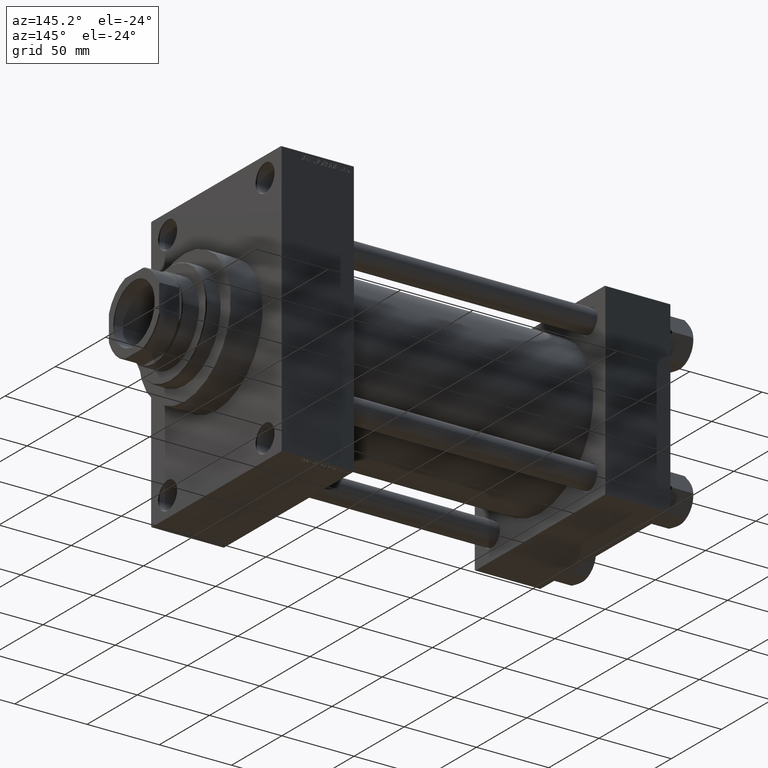
[diagram: clean part render]
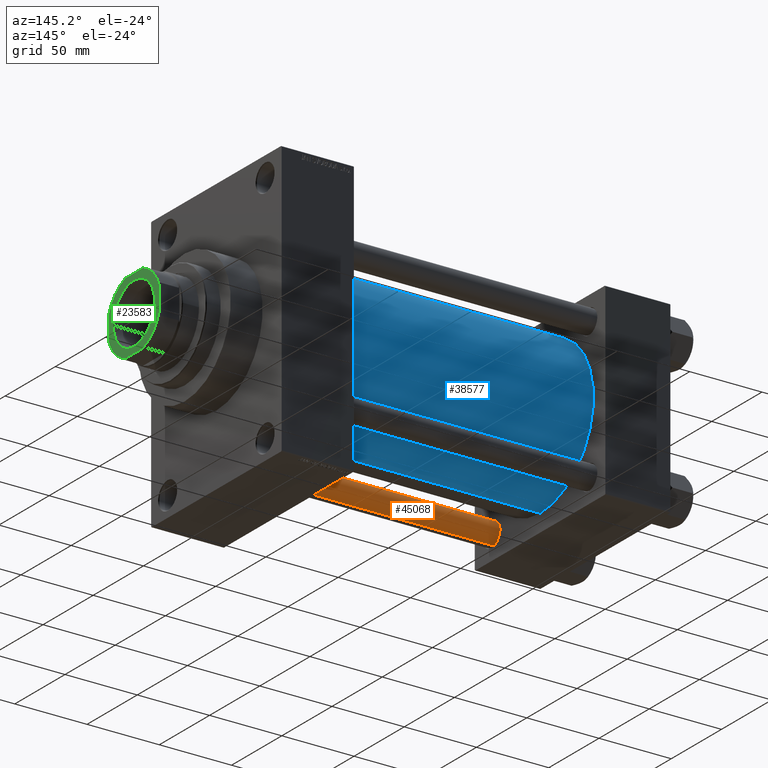
[diagram: same view with three faces highlighted in distinct colors, each labeled with its STEP entity id]
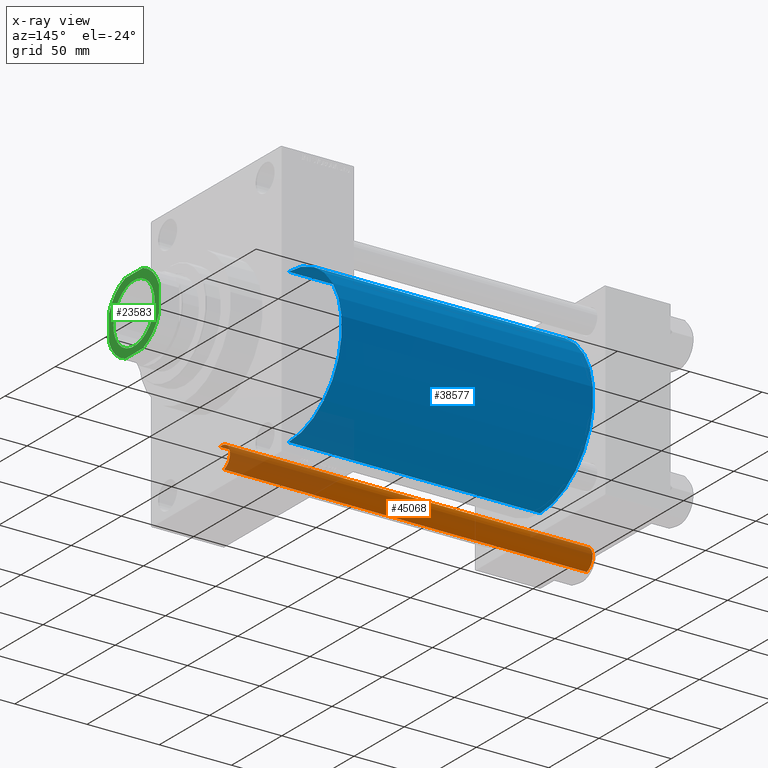
[diagram: x-ray of the same camera — body ghosted, the three highlighted faces saturated]
A machine part, auxiliary view with three faces highlighted in distinct colors.
The next image is the same camera in x-ray (body ghosted, the three faces saturated) — at least one of them is partly hidden behind the body in this view.
Their STEP definitions:

[orange] entity #45068 — the highlighted cylindrical surface (edge-blend (fillet) strip) has radius 8 mm, axis along (-1, 0, 0).
#1626 = EDGE_CURVE ( 'NONE', #46595, #19798, #15495, .T. ) ;
#1656 = LINE ( 'NONE', #40361, #41339 ) ;
#2331 = CARTESIAN_POINT ( 'NONE',  ( 0.000000000000000000, 0.000000000000000000, 252.0000000000000000 ) ) ;
#2379 = ORIENTED_EDGE ( 'NONE', *, *, #1626, .F. ) ;
#5702 = DIRECTION ( 'NONE',  ( -1.000000000000000000, 0.000000000000000000, 0.000000000000000000 ) ) ;
#7873 = CARTESIAN_POINT ( 'NONE',  ( 0.000000000000000000, 0.000000000000000000, 0.5000000000000559552 ) ) ;
#8004 = DIRECTION ( 'NONE',  ( -0.000000000000000000, -0.000000000000000000, -1.000000000000000000 ) ) ;
#9804 = DIRECTION ( 'NONE',  ( -0.000000000000000000, -0.000000000000000000, -1.000000000000000000 ) ) ;
#12521 = AXIS2_PLACEMENT_3D ( 'NONE', #2331, #9804, #5702 ) ;
#12691 = VECTOR ( 'NONE', #8004, 1000.000000000000000 ) ;
#12751 = CARTESIAN_POINT ( 'NONE',  ( -8.000000000000000000, 0.000000000000000000, 251.4999999999999432 ) ) ;
#15247 = AXIS2_PLACEMENT_3D ( 'NONE', #41142, #29766, #45012 ) ;
#15495 = LINE ( 'NONE', #33343, #12691 ) ;
#15672 = CARTESIAN_POINT ( 'NONE',  ( -8.000000000000000000, 0.000000000000000000, 0.5000000000000559552 ) ) ;
#16425 = VERTEX_POINT ( 'NONE', #15672 ) ;
#18396 = DIRECTION ( 'NONE',  ( -0.000000000000000000, -0.000000000000000000, -1.000000000000000000 ) ) ;
#19459 = FACE_OUTER_BOUND ( 'NONE', #32151, .T. ) ;
#19798 = VERTEX_POINT ( 'NONE', #39562 ) ;
#20000 = ORIENTED_EDGE ( 'NONE', *, *, #23080, .T. ) ;
#20424 = CYLINDRICAL_SURFACE ( 'NONE', #12521, 8.000000000000000000 ) ;
#22745 = EDGE_CURVE ( 'NONE', #32861, #16425, #1656, .T. ) ;
#23080 = EDGE_CURVE ( 'NONE', #16425, #19798, #46014, .T. ) ;
#24388 = AXIS2_PLACEMENT_3D ( 'NONE', #7873, #30782, #41196 ) ;
#25481 = EDGE_CURVE ( 'NONE', #46595, #32861, #32167, .T. ) ;
#29766 = DIRECTION ( 'NONE',  ( 0.000000000000000000, 0.000000000000000000, -1.000000000000000000 ) ) ;
#30782 = DIRECTION ( 'NONE',  ( -0.000000000000000000, -0.000000000000000000, 1.000000000000000000 ) ) ;
#31653 = CARTESIAN_POINT ( 'NONE',  ( 8.000000000000000000, 9.797174393178825657E-16, 251.4999999999999432 ) ) ;
#32151 = EDGE_LOOP ( 'NONE', ( #2379, #33303, #34400, #20000 ) ) ;
#32167 = CIRCLE ( 'NONE', #15247, 8.000000000000000000 ) ;
#32861 = VERTEX_POINT ( 'NONE', #12751 ) ;
#33303 = ORIENTED_EDGE ( 'NONE', *, *, #25481, .T. ) ;
#33343 = CARTESIAN_POINT ( 'NONE',  ( 8.000000000000000000, 9.797174393178825657E-16, 252.0000000000000000 ) ) ;
#34400 = ORIENTED_EDGE ( 'NONE', *, *, #22745, .T. ) ;
#39562 = CARTESIAN_POINT ( 'NONE',  ( 8.000000000000000000, 9.797174393178825657E-16, 0.5000000000000559552 ) ) ;
#40361 = CARTESIAN_POINT ( 'NONE',  ( -8.000000000000000000, 0.000000000000000000, 252.0000000000000000 ) ) ;
#41142 = CARTESIAN_POINT ( 'NONE',  ( 0.000000000000000000, 0.000000000000000000, 251.4999999999999432 ) ) ;
#41196 = DIRECTION ( 'NONE',  ( 1.000000000000000000, 0.000000000000000000, 0.000000000000000000 ) ) ;
#41339 = VECTOR ( 'NONE', #18396, 1000.000000000000000 ) ;
#45012 = DIRECTION ( 'NONE',  ( 1.000000000000000000, 0.000000000000000000, 0.000000000000000000 ) ) ;
#45068 = ADVANCED_FACE ( 'NONE', ( #19459 ), #20424, .T. ) ;
#46014 = CIRCLE ( 'NONE', #24388, 8.000000000000000000 ) ;
#46595 = VERTEX_POINT ( 'NONE', #31653 ) ;

[blue] entity #38577 — the highlighted cylindrical surface (partial cylindrical patch) has radius 53 mm, axis along (-1, -0, -0).
#2019 = DIRECTION ( 'NONE',  ( 0.000000000000000000, 0.000000000000000000, -1.000000000000000000 ) ) ;
#5675 = CYLINDRICAL_SURFACE ( 'NONE', #30903, 53.00000000000000711 ) ;
#7071 = EDGE_CURVE ( 'NONE', #47107, #10708, #46802, .T. ) ;
#7730 = EDGE_CURVE ( 'NONE', #10708, #31385, #17414, .T. ) ;
#9535 = CARTESIAN_POINT ( 'NONE',  ( 218.9999999999999716, -2.602085213965210642E-15, 0.000000000000000000 ) ) ;
#10708 = VERTEX_POINT ( 'NONE', #13864 ) ;
#10798 = ORIENTED_EDGE ( 'NONE', *, *, #15302, .F. ) ;
#11954 = VECTOR ( 'NONE', #27466, 1000.000000000000000 ) ;
#13719 = CARTESIAN_POINT ( 'NONE',  ( 218.9999999999999716, 3.888542821515762466E-15, -53.00000000000000711 ) ) ;
#13864 = CARTESIAN_POINT ( 'NONE',  ( 44.99999999999998579, 3.888542821515762466E-15, -53.00000000000000711 ) ) ;
#14239 = CARTESIAN_POINT ( 'NONE',  ( 218.9999999999999716, -2.602085213965210642E-15, 53.00000000000000711 ) ) ;
#14921 = ORIENTED_EDGE ( 'NONE', *, *, #7730, .T. ) ;
#15302 = EDGE_CURVE ( 'NONE', #21977, #31385, #39388, .T. ) ;
#16388 = CARTESIAN_POINT ( 'NONE',  ( 44.99999999999998579, -2.602085213965210642E-15, 0.000000000000000000 ) ) ;
#16707 = AXIS2_PLACEMENT_3D ( 'NONE', #38217, #35065, #2019 ) ;
#17414 = CIRCLE ( 'NONE', #42054, 53.00000000000000711 ) ;
#19908 = DIRECTION ( 'NONE',  ( -1.000000000000000000, -0.000000000000000000, -0.000000000000000000 ) ) ;
#21977 = VERTEX_POINT ( 'NONE', #14239 ) ;
#22576 = EDGE_CURVE ( 'NONE', #47107, #21977, #45209, .T. ) ;
#23684 = CARTESIAN_POINT ( 'NONE',  ( 218.9999999999999716, -2.602085213965210642E-15, 53.00000000000000711 ) ) ;
#23862 = DIRECTION ( 'NONE',  ( 0.000000000000000000, 0.000000000000000000, 1.000000000000000000 ) ) ;
#26476 = CARTESIAN_POINT ( 'NONE',  ( 218.9999999999999716, 3.888542821515762466E-15, -53.00000000000000711 ) ) ;
#27466 = DIRECTION ( 'NONE',  ( -1.000000000000000000, -0.000000000000000000, -0.000000000000000000 ) ) ;
#30762 = FACE_OUTER_BOUND ( 'NONE', #30996, .T. ) ;
#30903 = AXIS2_PLACEMENT_3D ( 'NONE', #9535, #19908, #45770 ) ;
#30996 = EDGE_LOOP ( 'NONE', ( #41488, #32035, #14921, #10798 ) ) ;
#31385 = VERTEX_POINT ( 'NONE', #34855 ) ;
#32035 = ORIENTED_EDGE ( 'NONE', *, *, #7071, .T. ) ;
#34855 = CARTESIAN_POINT ( 'NONE',  ( 44.99999999999998579, -2.602085213965210642E-15, 53.00000000000000711 ) ) ;
#35065 = DIRECTION ( 'NONE',  ( 1.000000000000000000, 0.000000000000000000, 0.000000000000000000 ) ) ;
#36889 = VECTOR ( 'NONE', #38419, 1000.000000000000000 ) ;
#38217 = CARTESIAN_POINT ( 'NONE',  ( 218.9999999999999716, -2.602085213965210642E-15, 0.000000000000000000 ) ) ;
#38419 = DIRECTION ( 'NONE',  ( -1.000000000000000000, -0.000000000000000000, -0.000000000000000000 ) ) ;
#38577 = ADVANCED_FACE ( 'NONE', ( #30762 ), #5675, .T. ) ;
#39388 = LINE ( 'NONE', #23684, #36889 ) ;
#41488 = ORIENTED_EDGE ( 'NONE', *, *, #22576, .F. ) ;
#42054 = AXIS2_PLACEMENT_3D ( 'NONE', #16388, #45131, #23862 ) ;
#45131 = DIRECTION ( 'NONE',  ( 1.000000000000000000, -0.000000000000000000, 0.000000000000000000 ) ) ;
#45209 = CIRCLE ( 'NONE', #16707, 53.00000000000000711 ) ;
#45770 = DIRECTION ( 'NONE',  ( 0.000000000000000000, 0.000000000000000000, 1.000000000000000000 ) ) ;
#46802 = LINE ( 'NONE', #13719, #11954 ) ;
#47107 = VERTEX_POINT ( 'NONE', #26476 ) ;

[green] entity #23583 — the highlighted planar face has unit normal (1, 0, 0).
#13 = DIRECTION ( 'NONE',  ( 1.000000000000000000, 0.000000000000000000, 0.000000000000000000 ) ) ;
#1991 = ORIENTED_EDGE ( 'NONE', *, *, #45553, .T. ) ;
#2347 = EDGE_LOOP ( 'NONE', ( #16140, #20128 ) ) ;
#2606 = DIRECTION ( 'NONE',  ( 1.387778780781445676E-16, -1.000000000000000000, 0.000000000000000000 ) ) ;
#4362 = DIRECTION ( 'NONE',  ( 1.000000000000000000, 0.000000000000000000, 0.000000000000000000 ) ) ;
#4381 = DIRECTION ( 'NONE',  ( 1.000000000000000000, 0.000000000000000000, 0.000000000000000000 ) ) ;
#5800 = ORIENTED_EDGE ( 'NONE', *, *, #42863, .T. ) ;
#5976 = VERTEX_POINT ( 'NONE', #24745 ) ;
#6214 = EDGE_CURVE ( 'NONE', #7307, #5976, #14273, .T. ) ;
#6619 = AXIS2_PLACEMENT_3D ( 'NONE', #28958, #14486, #13 ) ;
#7307 = VERTEX_POINT ( 'NONE', #13188 ) ;
#7571 = CARTESIAN_POINT ( 'NONE',  ( 0.000000000000000000, 0.000000000000000000, 281.0000000000000000 ) ) ;
#7918 = CARTESIAN_POINT ( 'NONE',  ( 0.000000000000000000, 0.000000000000000000, 281.0000000000000000 ) ) ;
#8233 = DIRECTION ( 'NONE',  ( 0.000000000000000000, -0.000000000000000000, -1.000000000000000000 ) ) ;
#8287 = CIRCLE ( 'NONE', #45330, 20.54999999999998650 ) ;
#8543 = CARTESIAN_POINT ( 'NONE',  ( 8.789197915623713442, 25.00000000000000000, 281.0000000000000000 ) ) ;
#8928 = EDGE_CURVE ( 'NONE', #36887, #19366, #42891, .T. ) ;
#9019 = DIRECTION ( 'NONE',  ( 1.000000000000000000, 0.000000000000000000, 0.000000000000000000 ) ) ;
#9796 = LINE ( 'NONE', #42161, #11378 ) ;
#10036 = CARTESIAN_POINT ( 'NONE',  ( -24.99999999999999289, -25.00000000000000000, 281.0000000000000000 ) ) ;
#10670 = CARTESIAN_POINT ( 'NONE',  ( 8.789197915623715218, -25.00000000000000000, 281.0000000000000000 ) ) ;
#10993 = ORIENTED_EDGE ( 'NONE', *, *, #12307, .T. ) ;
#11378 = VECTOR ( 'NONE', #35616, 1000.000000000000000 ) ;
#11801 = VERTEX_POINT ( 'NONE', #10670 ) ;
#11931 = EDGE_CURVE ( 'NONE', #41548, #7307, #28655, .T. ) ;
#12262 = FACE_OUTER_BOUND ( 'NONE', #46320, .T. ) ;
#12307 = EDGE_CURVE ( 'NONE', #11801, #13730, #36780, .T. ) ;
#12451 = CIRCLE ( 'NONE', #45624, 26.50000000000004263 ) ;
#12746 = FACE_BOUND ( 'NONE', #2347, .T. ) ;
#13188 = CARTESIAN_POINT ( 'NONE',  ( -24.99999999999999645, -8.789197915623496726, 281.0000000000000000 ) ) ;
#13319 = EDGE_CURVE ( 'NONE', #37542, #24120, #8287, .T. ) ;
#13730 = VERTEX_POINT ( 'NONE', #43493 ) ;
#13827 = CARTESIAN_POINT ( 'NONE',  ( -20.54999999999998650, 2.516649172247808793E-15, 281.0000000000000000 ) ) ;
#14273 = CIRCLE ( 'NONE', #31205, 26.50000000000000711 ) ;
#14486 = DIRECTION ( 'NONE',  ( -0.000000000000000000, 0.000000000000000000, 1.000000000000000000 ) ) ;
#14703 = ORIENTED_EDGE ( 'NONE', *, *, #28926, .T. ) ;
#14918 = EDGE_CURVE ( 'NONE', #5976, #11801, #28370, .T. ) ;
#15464 = DIRECTION ( 'NONE',  ( -0.000000000000000000, 0.000000000000000000, 1.000000000000000000 ) ) ;
#15978 = AXIS2_PLACEMENT_3D ( 'NONE', #7571, #25674, #47682 ) ;
#16140 = ORIENTED_EDGE ( 'NONE', *, *, #13319, .T. ) ;
#18501 = ORIENTED_EDGE ( 'NONE', *, *, #11931, .T. ) ;
#18662 = CARTESIAN_POINT ( 'NONE',  ( -24.99999999999999645, 8.789197915623610413, 281.0000000000000000 ) ) ;
#19366 = VERTEX_POINT ( 'NONE', #8543 ) ;
#19490 = VECTOR ( 'NONE', #39678, 1000.000000000000000 ) ;
#19970 = DIRECTION ( 'NONE',  ( 1.000000000000000000, 0.000000000000000000, 0.000000000000000000 ) ) ;
#20128 = ORIENTED_EDGE ( 'NONE', *, *, #34639, .T. ) ;
#21216 = ORIENTED_EDGE ( 'NONE', *, *, #8928, .T. ) ;
#21393 = CARTESIAN_POINT ( 'NONE',  ( -8.789197915623599755, 25.00000000000000000, 281.0000000000000000 ) ) ;
#22633 = DIRECTION ( 'NONE',  ( -0.000000000000000000, 0.000000000000000000, 1.000000000000000000 ) ) ;
#23583 = ADVANCED_FACE ( 'NONE', ( #12746, #12262 ), #42445, .T. ) ;
#24120 = VERTEX_POINT ( 'NONE', #13827 ) ;
#24745 = CARTESIAN_POINT ( 'NONE',  ( -8.789197915623482515, -25.00000000000000000, 281.0000000000000000 ) ) ;
#25172 = LINE ( 'NONE', #28789, #19490 ) ;
#25267 = CARTESIAN_POINT ( 'NONE',  ( -25.00000000000000000, 25.00000000000000000, 281.0000000000000000 ) ) ;
#25674 = DIRECTION ( 'NONE',  ( -0.000000000000000000, 0.000000000000000000, 1.000000000000000000 ) ) ;
#27207 = CARTESIAN_POINT ( 'NONE',  ( 0.000000000000000000, 0.000000000000000000, 281.0000000000000000 ) ) ;
#27208 = ORIENTED_EDGE ( 'NONE', *, *, #14918, .T. ) ;
#28370 = LINE ( 'NONE', #10036, #35345 ) ;
#28655 = LINE ( 'NONE', #25267, #46104 ) ;
#28789 = CARTESIAN_POINT ( 'NONE',  ( 25.00000000000000000, 25.00000000000000000, 281.0000000000000000 ) ) ;
#28926 = EDGE_CURVE ( 'NONE', #19366, #36298, #9796, .T. ) ;
#28958 = CARTESIAN_POINT ( 'NONE',  ( 0.000000000000000000, 0.000000000000000000, 281.0000000000000000 ) ) ;
#30043 = CARTESIAN_POINT ( 'NONE',  ( 20.54999999999998650, 0.000000000000000000, 281.0000000000000000 ) ) ;
#30404 = CARTESIAN_POINT ( 'NONE',  ( 0.000000000000000000, 0.000000000000000000, 281.0000000000000000 ) ) ;
#31205 = AXIS2_PLACEMENT_3D ( 'NONE', #7918, #22633, #37364 ) ;
#31212 = CARTESIAN_POINT ( 'NONE',  ( 0.000000000000000000, 0.000000000000000000, 281.0000000000000000 ) ) ;
#32131 = AXIS2_PLACEMENT_3D ( 'NONE', #27207, #45349, #19970 ) ;
#32849 = CARTESIAN_POINT ( 'NONE',  ( 25.00000000000000355, 8.789197915623713442, 281.0000000000000000 ) ) ;
#33106 = AXIS2_PLACEMENT_3D ( 'NONE', #36729, #8233, #4381 ) ;
#34639 = EDGE_CURVE ( 'NONE', #24120, #37542, #47044, .T. ) ;
#35345 = VECTOR ( 'NONE', #42649, 1000.000000000000000 ) ;
#35616 = DIRECTION ( 'NONE',  ( -1.000000000000000000, -0.000000000000000000, -0.000000000000000000 ) ) ;
#36298 = VERTEX_POINT ( 'NONE', #21393 ) ;
#36729 = CARTESIAN_POINT ( 'NONE',  ( 0.000000000000000000, 0.000000000000000000, 281.0000000000000000 ) ) ;
#36780 = CIRCLE ( 'NONE', #15978, 26.50000000000008171 ) ;
#36887 = VERTEX_POINT ( 'NONE', #32849 ) ;
#37364 = DIRECTION ( 'NONE',  ( 1.000000000000000000, 0.000000000000000000, 0.000000000000000000 ) ) ;
#37542 = VERTEX_POINT ( 'NONE', #30043 ) ;
#39355 = ORIENTED_EDGE ( 'NONE', *, *, #6214, .T. ) ;
#39678 = DIRECTION ( 'NONE',  ( -1.387778780781445676E-16, 1.000000000000000000, -0.000000000000000000 ) ) ;
#41548 = VERTEX_POINT ( 'NONE', #18662 ) ;
#42161 = CARTESIAN_POINT ( 'NONE',  ( -25.00000000000000000, 25.00000000000000000, 281.0000000000000000 ) ) ;
#42346 = DIRECTION ( 'NONE',  ( 0.000000000000000000, -0.000000000000000000, -1.000000000000000000 ) ) ;
#42445 = PLANE ( 'NONE',  #32131 ) ;
#42649 = DIRECTION ( 'NONE',  ( 1.000000000000000000, 0.000000000000000000, 0.000000000000000000 ) ) ;
#42863 = EDGE_CURVE ( 'NONE', #36298, #41548, #12451, .T. ) ;
#42891 = CIRCLE ( 'NONE', #6619, 26.50000000000008171 ) ;
#43493 = CARTESIAN_POINT ( 'NONE',  ( 25.00000000000000355, -8.789197915623708113, 281.0000000000000000 ) ) ;
#45330 = AXIS2_PLACEMENT_3D ( 'NONE', #31212, #42346, #9019 ) ;
#45349 = DIRECTION ( 'NONE',  ( -0.000000000000000000, 0.000000000000000000, 1.000000000000000000 ) ) ;
#45553 = EDGE_CURVE ( 'NONE', #13730, #36887, #25172, .T. ) ;
#45624 = AXIS2_PLACEMENT_3D ( 'NONE', #30404, #15464, #4362 ) ;
#46104 = VECTOR ( 'NONE', #2606, 1000.000000000000000 ) ;
#46320 = EDGE_LOOP ( 'NONE', ( #1991, #21216, #14703, #5800, #18501, #39355, #27208, #10993 ) ) ;
#47044 = CIRCLE ( 'NONE', #33106, 20.54999999999998650 ) ;
#47682 = DIRECTION ( 'NONE',  ( 1.000000000000000000, 0.000000000000000000, 0.000000000000000000 ) ) ;